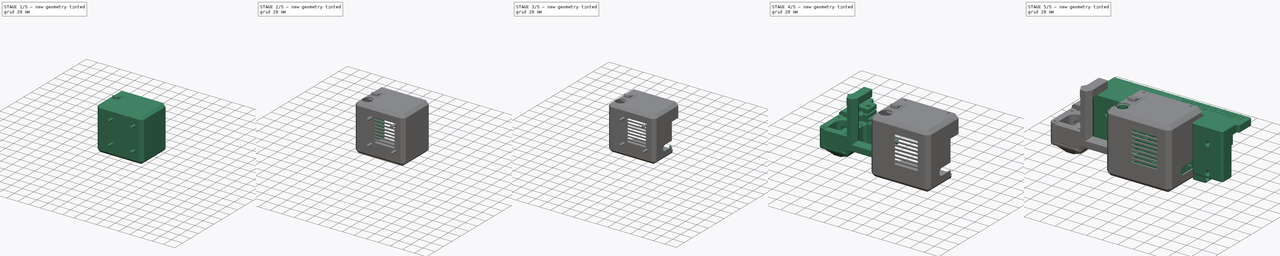
[diagram: build sequence overview — one tinted view per stage of 5, left to right]
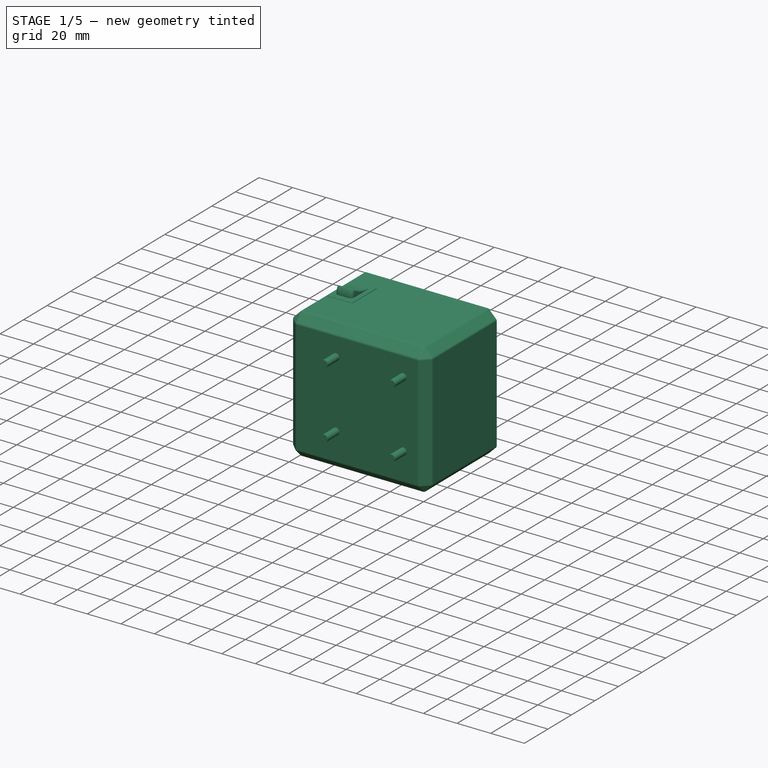
[diagram: stage 1 of 5 — iso view after this stage's code; geometry added in this stage tinted green]
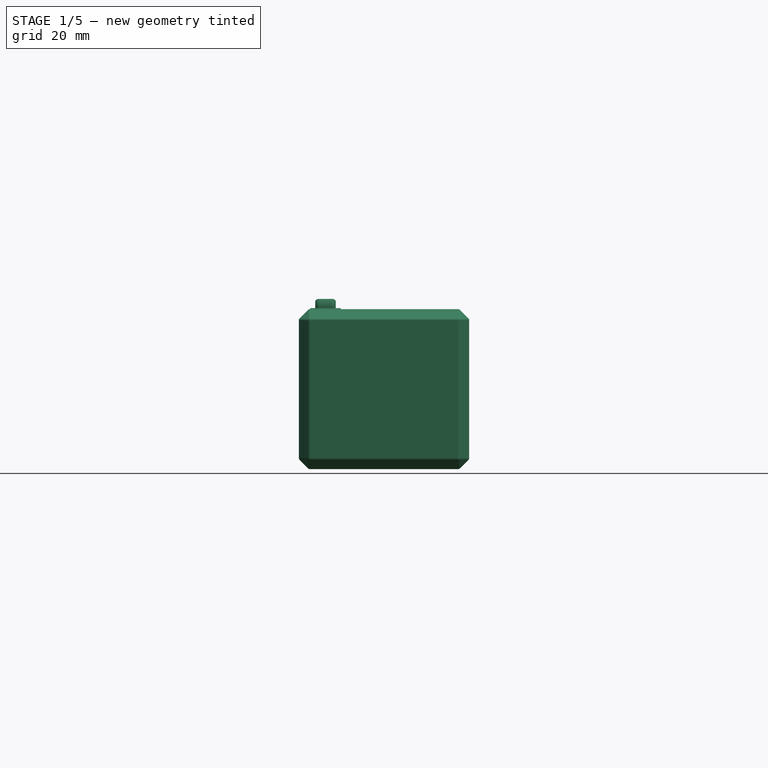
[diagram: stage 1 of 5 — front view after this stage's code; geometry added in this stage tinted green]
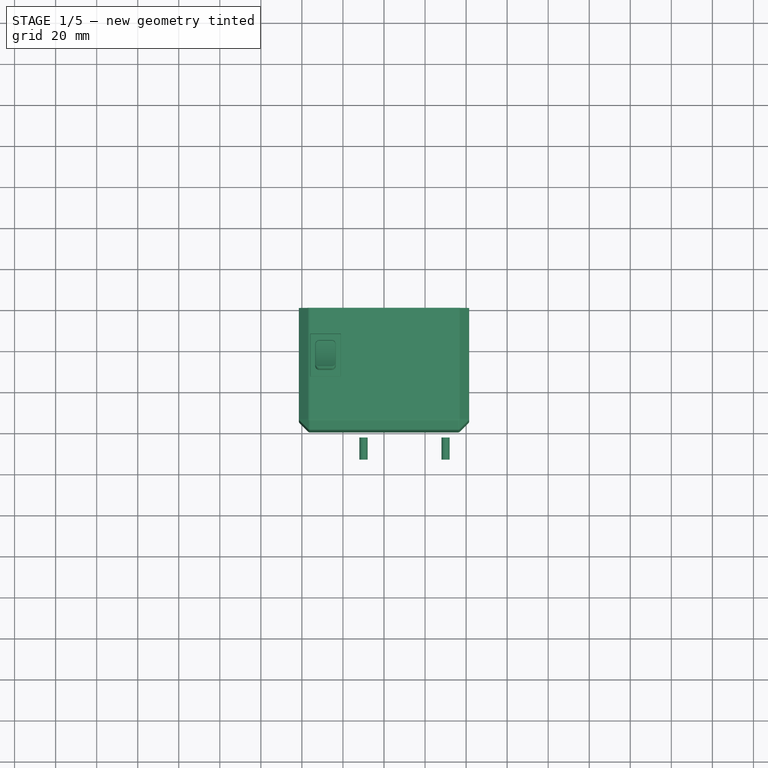
[diagram: stage 1 of 5 — top view after this stage's code; geometry added in this stage tinted green]
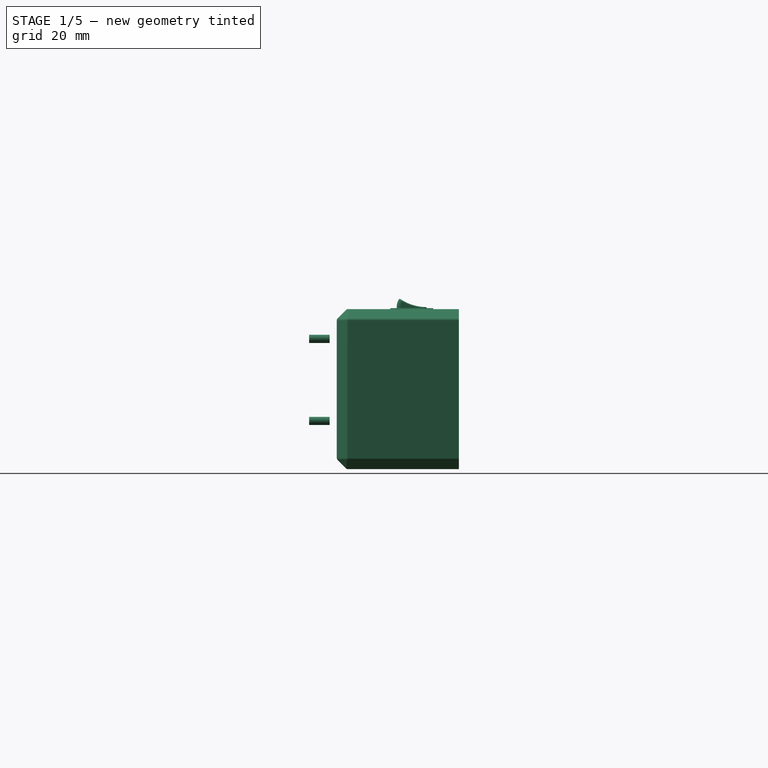
[diagram: stage 1 of 5 — right view after this stage's code; geometry added in this stage tinted green]
FCSTD DOCUMENT  (FreeCAD 0.16RUnknown)
Label: ElecLid
License: All rights reserved
LicenseURL: http://en.wikipedia.org/wiki/All_rights_reserved
objects: Part::FeaturePython×16, Part::Cut×12, Sketcher::SketchObject×7, PartDesign::Pad×7, App::DocumentObjectGroup×3, Part::Chamfer×1, Part::Thickness×1, Part::Feature×1, Spreadsheet::Sheet×1, Part::Part2DObjectPython×1, Part::Extrusion×1, Part::Box×1, PartDesign::Draft×1, Part::Mirroring×1
note: 57 computed .brp shape members not serialized (recipe doc carries the construction recipe); baked Part::Feature solids carry a one-line shape summary decoded from their .brp

FEATURE [Sketcher::SketchObject] Sketch  label="Base"
  Placement = pos=(0,0,0) rot=(1,0,0;1.5708rad)
  sketch-geometry (4):
    g0: LineSegment StartX=0 StartY=75 StartZ=0 EndX=80 EndY=75 EndZ=0
    g1: LineSegment StartX=80 StartY=75 StartZ=0 EndX=80 EndY=0 EndZ=0
    g2: LineSegment StartX=80 StartY=0 StartZ=0 EndX=0 EndY=0 EndZ=0
    g3: LineSegment StartX=0 StartY=0 StartZ=0 EndX=0 EndY=75 EndZ=0
  constraints (11):
    c: Coincident(g0,g1)
    c: Coincident(g1,g2)
    c: Coincident(g2,g3)
    c: Coincident(g3,g0)
    c: Horizontal(g0)
    c: Horizontal(g2)
    c: Vertical(g1)
    c: Vertical(g3)
    c: DistanceX(g0,g0) = 80
    c: DistanceY(g1,g1) = 75
    c: Coincident(g2,g-1)
FEATURE [PartDesign::Pad] Pad  label="Base001"
  Length = 58
  Length2 = 100
  Placement = pos=(0,0,0) rot=(1,0,0;1.5708rad)
  Sketch = -> Sketch
  Type = 0
FEATURE [Part::Chamfer] Chamfer  label="NiceChamfer"
  Base = -> Pad
  Edges = 8 edges r=4: [Edge1,Edge2,Edge4,Edge5,Edge7,Edge8,Edge10,Edge12]
FEATURE [Sketcher::SketchObject] Sketch001  label="Slot"
  Placement = pos=(0,0,0) rot=(1,0,0;1.5708rad)
  sketch-geometry (4):
    g0: ArcOfCircle CenterX=35 CenterY=60 CenterZ=0 NormalX=0 NormalY=0 NormalZ=1 Radius=1.5 StartAngle=1.5708 EndAngle=4.71239
    g1: ArcOfCircle CenterX=65 CenterY=60 CenterZ=0 NormalX=0 NormalY=0 NormalZ=1 Radius=1.5 StartAngle=4.71239 EndAngle=7.85398
    g2: LineSegment StartX=35 StartY=58.5 StartZ=0 EndX=65 EndY=58.5 EndZ=0
    g3: LineSegment StartX=35 StartY=61.5 StartZ=0 EndX=65 EndY=61.5 EndZ=0
  constraints (10):
    c: Tangent(g0,g3) = 1.5708
    c: Tangent(g0,g2) = -1.5708
    c: Tangent(g2,g1) = -1.5708
    c: Tangent(g3,g1) = 1.5708
    c: Horizontal(g2)
    c: Equal(g0,g1)
    c: Radius(g1) = 1.5
    c: DistanceX(g0,g1) = 30
    c: DistanceX(g0) = 35
    c: DistanceY(g0) = 60
FEATURE [Part::Thickness] Thickness
  Faces = -> Chamfer [Face2]
  Intersection = false
  Join = 0
  Mode = 0
  SelfIntersection = false
  Value = 1.5
FEATURE [PartDesign::Pad] Pad005  label="SwitchSlot001"
  Length = 50
  Length2 = 100
  Placement = pos=(0,0,61) rot=(0,0,1;0rad)
  Sketch = -> Sketch008
  Type = 0
FEATURE [Part::Cut] Cut008  label="SwitchSlot002"
  Base = -> Thickness
  Tool = -> Pad005
FEATURE [Sketcher::SketchObject] Sketch010  label="FanBolts"
  sketch-geometry (8):
    g0: LineSegment [constr] StartX=-20 StartY=20 StartZ=0 EndX=20 EndY=20 EndZ=0
    g1: LineSegment [constr] StartX=20 StartY=20 StartZ=0 EndX=20 EndY=-20 EndZ=0
    g2: LineSegment [constr] StartX=20 StartY=-20 StartZ=0 EndX=-20 EndY=-20 EndZ=0
    g3: LineSegment [constr] StartX=-20 StartY=-20 StartZ=0 EndX=-20 EndY=20 EndZ=0
    g4: Circle CenterX=20 CenterY=20 CenterZ=0 NormalX=0 NormalY=0 NormalZ=1 Radius=2
    g5: Circle CenterX=-20 CenterY=20 CenterZ=0 NormalX=0 NormalY=0 NormalZ=1 Radius=2
    g6: Circle CenterX=-20 CenterY=-20 CenterZ=0 NormalX=0 NormalY=0 NormalZ=1 Radius=2
    g7: Circle CenterX=20 CenterY=-20 CenterZ=0 NormalX=0 NormalY=0 NormalZ=1 Radius=2
  constraints (19):
    c: Coincident(g0,g1)
    c: Coincident(g1,g2)
    c: Coincident(g2,g3)
    c: Coincident(g3,g0)
    c: Horizontal(g0)
    c: Horizontal(g2)
    c: Vertical(g1)
    c: Vertical(g3)
    c: Symmetric(g0,g1,g-1)
    c: Equal(g1,g0)
    c: Coincident(g0,g5)
    c: Coincident(g2,g6)
    c: Coincident(g1,g7)
    c: Coincident(g0,g4)
    c: Equal(g5,g4)
    c: Equal(g4,g6)
    c: Equal(g6,g7)
    c: Radius(g5) = 2
    c: DistanceX(g0,g0) = 40
FEATURE [PartDesign::Pad] Pad006  label="FanBolts001"
  Length = 10
  Length2 = 100
  Sketch = -> Sketch010
  Type = 0
FEATURE [App::DocumentObjectGroup] Group002  label="Component_src"
  Group = -> [Pad001,ShapeString,Extrude,Box,Draft,Pad006]
FEATURE [Part::FeaturePython] Clone007013  label="Clone of FanBolts001"  # Draft clone (typed FeaturePython)
  Objects = -> [Pad006]
  Placement = pos=(50,-63,42) rot=(1,0,0;1.5708rad)
  Scale = (1,1,1)
FEATURE [App::DocumentObjectGroup] Group001  label="src"
  Group = -> [Cut007,Cut004,Cut011]
FEATURE [Part::FeaturePython] RLEIL_RL3_4T125_55_01  # a2plus imported part (geometry in sourceFile) (typed FeaturePython)
  Placement = pos=(11.5,-23,75) rot=(0.57735,0.57735,0.57735;2.0944rad)
  fixedPosition = false
  sourceFile = ./Reference/RLEIL RL3-4T125 55.fcstd
  timeLastImport = 1.53296e+09
  updateColors = true
FEATURE [App::DocumentObjectGroup] Group  label="Reference"
  Group = -> [Compound018001,Clone,ElecMain_01,UpperBackCover_01,Clone007012,BackCorner_01,PulleyCover_01,RLEIL_RL3_4T125_55_01]
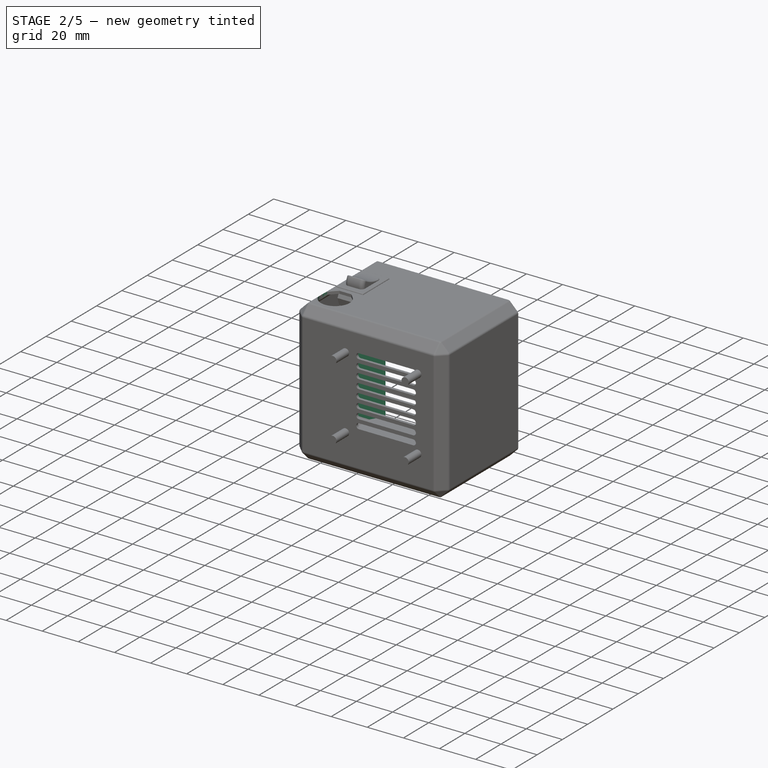
[diagram: stage 2 of 5 — iso view after this stage's code; geometry added in this stage tinted green]
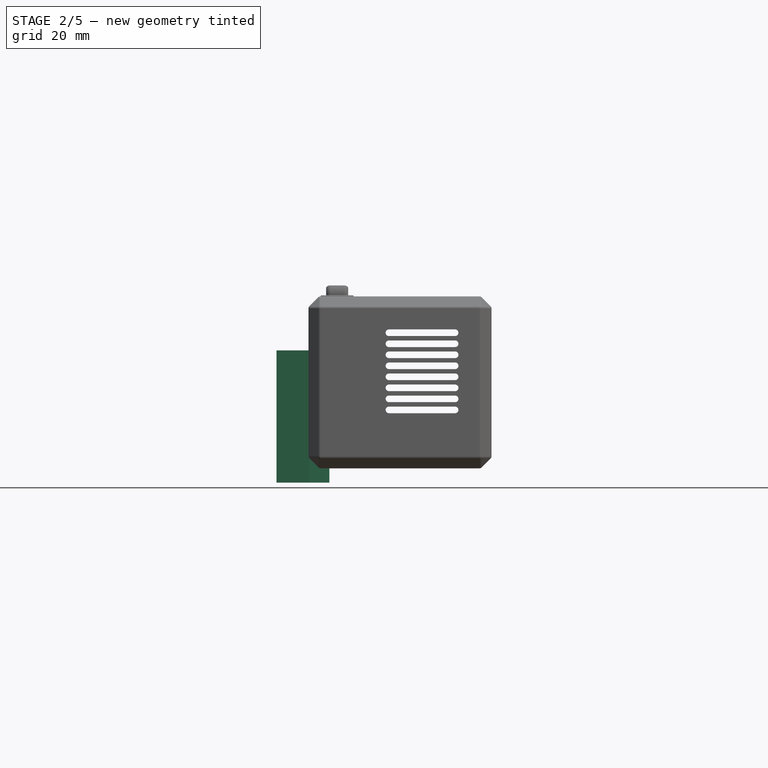
[diagram: stage 2 of 5 — front view after this stage's code; geometry added in this stage tinted green]
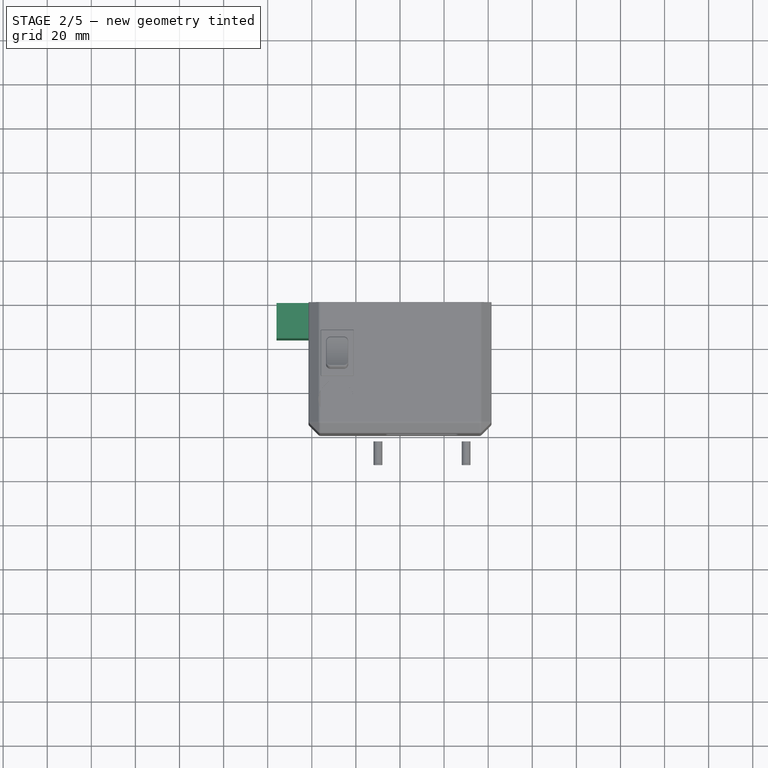
[diagram: stage 2 of 5 — top view after this stage's code; geometry added in this stage tinted green]
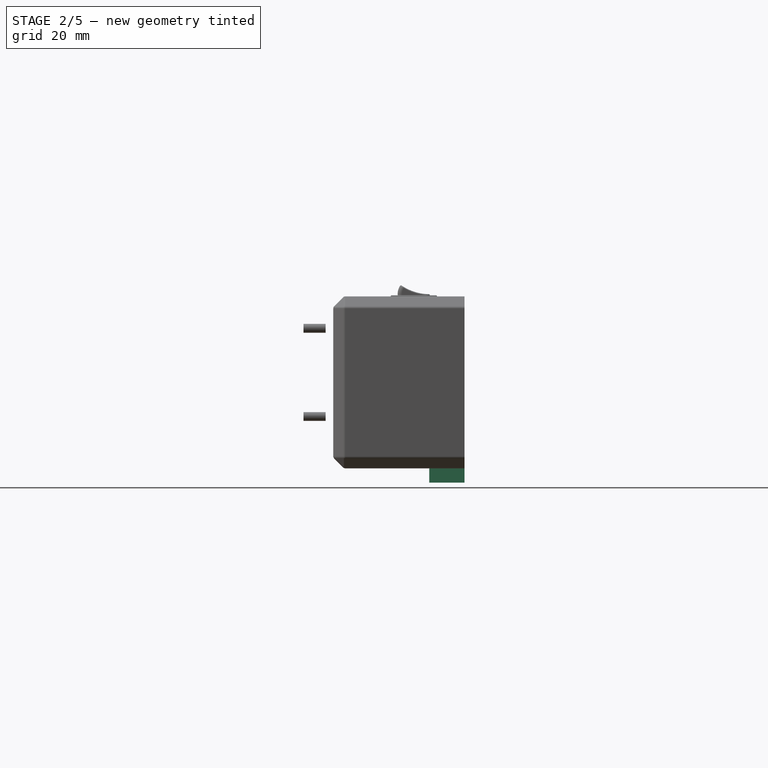
[diagram: stage 2 of 5 — right view after this stage's code; geometry added in this stage tinted green]
FEATURE [Part::Box] Box  label="RailSpace"
  Height = 24
  Length = 60
  Placement = pos=(8,0,46) rot=(0.707107,0,-0.707107;3.14159rad)
  Width = 16
FEATURE [PartDesign::Draft] Draft  label="RailDraft"
  Angle = 30
  Base = -> Box [Face5]
  NeutralPlane = -> Box [Face3]
  Placement = pos=(8,0,46) rot=(0.707107,0,-0.707107;3.14159rad)
FEATURE [Part::FeaturePython] Clone007011  label="Clone of RailDraft"  # Draft clone (typed FeaturePython)
  Objects = -> [Draft]
  Placement = pos=(8,0,52) rot=(0.707107,0,-0.707107;3.14159rad)
  Scale = (1,1,1)
FEATURE [PartDesign::Pad] Pad003  label="Slot001"
  Length = 100
  Length2 = 100
  Placement = pos=(0,0,0) rot=(1,0,0;1.5708rad)
  Sketch = -> Sketch001
  Type = 0
FEATURE [Part::FeaturePython] Array  label="Slots"  # Draft array (typed FeaturePython)
  Angle = 360
  ArrayType = 0
  Axis = (0,0,1)
  Base = -> Pad003
  Center = (0,0,0)
  Fuse = false
  IntervalAxis = (0,0,0)
  IntervalX = (1,0,0)
  IntervalY = (0,1,0)
  IntervalZ = (0,0,-5)
  NumberPolar = 1
  NumberX = 1
  NumberY = 1
  NumberZ = 8
FEATURE [PartDesign::Pad] Pad004  label="InletSpace001"
  Length = 50
  Length2 = 100
  Placement = pos=(0,0,61) rot=(0,0,1;0rad)
  Sketch = -> Sketch007
  Type = 0
FEATURE [Part::Cut] Cut009  label="SlotsCut"
  Base = -> Cut008
  Tool = -> Array
FEATURE [Part::Cut] Cut010  label="InletSpaceCut"
  Base = -> Cut009
  Tool = -> Pad004
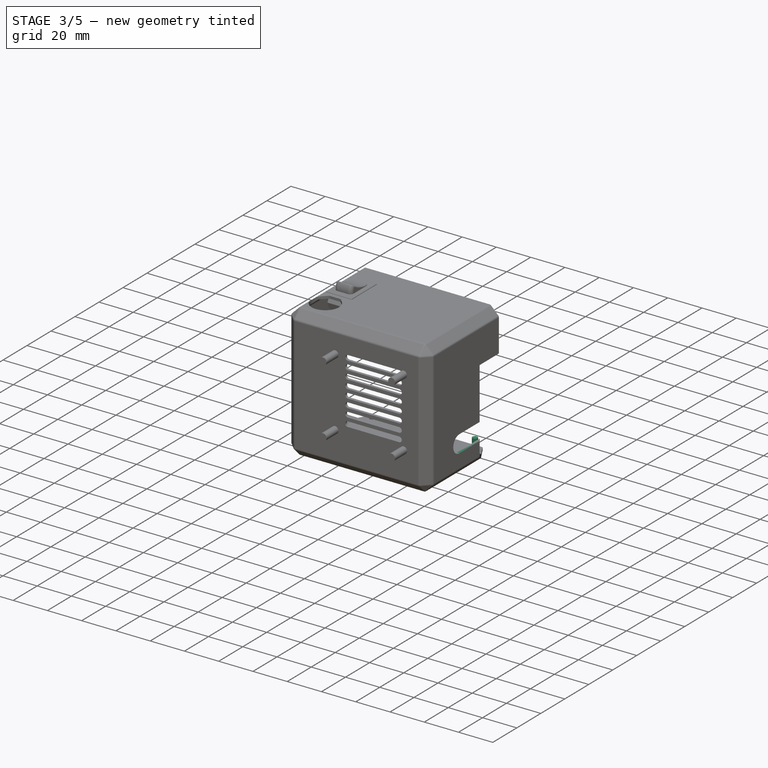
[diagram: stage 3 of 5 — iso view after this stage's code; geometry added in this stage tinted green]
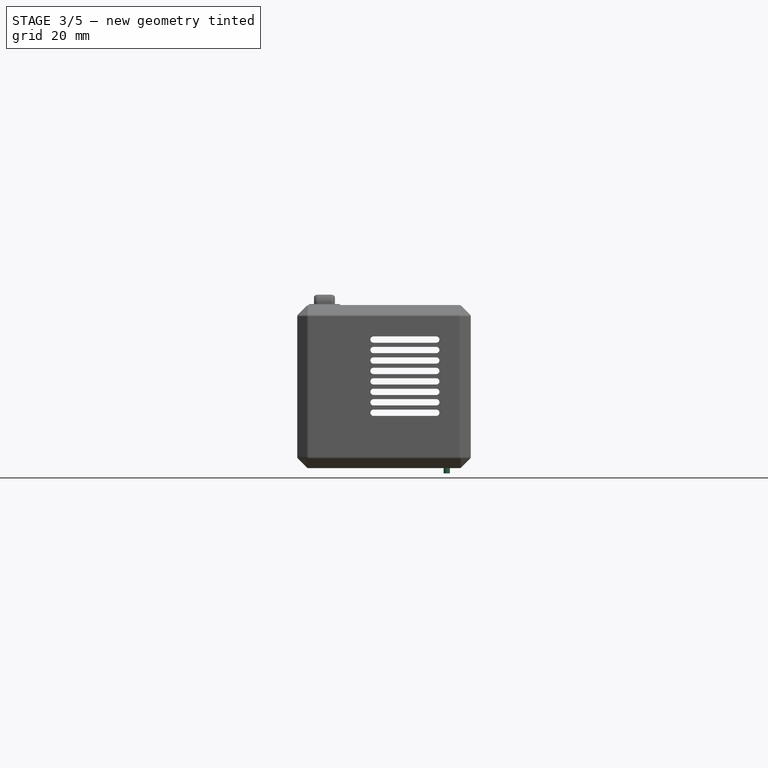
[diagram: stage 3 of 5 — front view after this stage's code; geometry added in this stage tinted green]
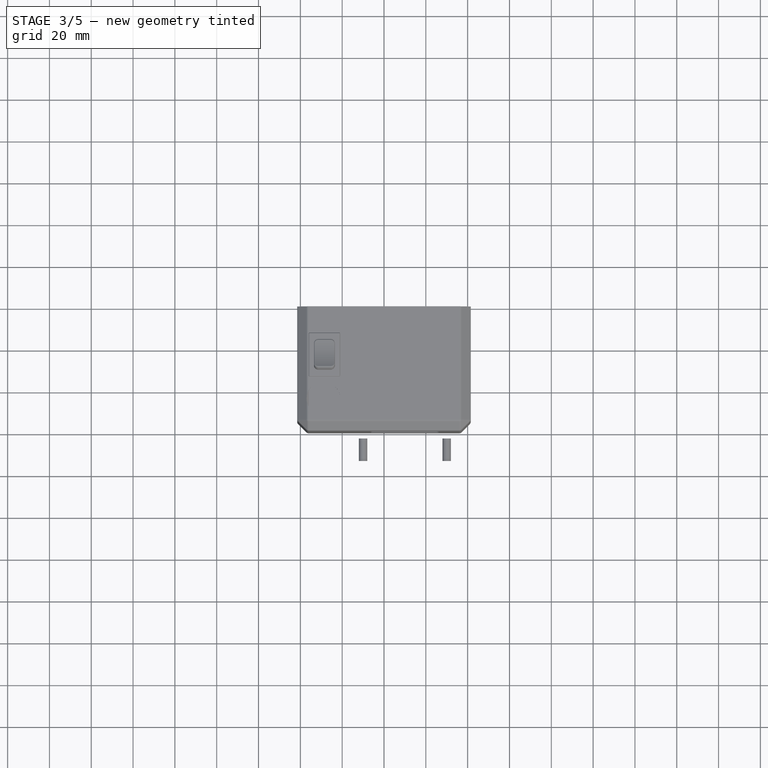
[diagram: stage 3 of 5 — top view after this stage's code; geometry added in this stage tinted green]
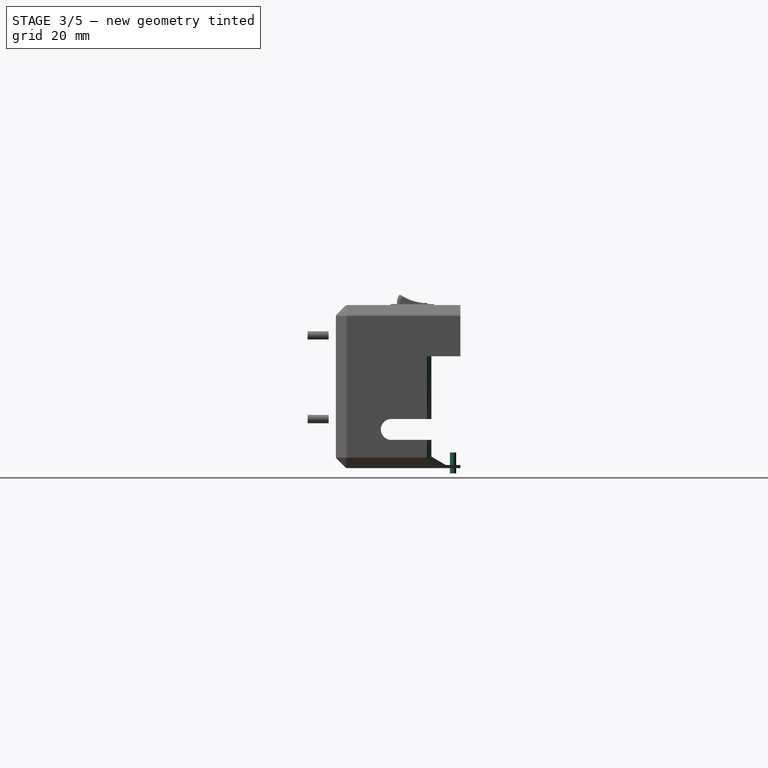
[diagram: stage 3 of 5 — right view after this stage's code; geometry added in this stage tinted green]
FEATURE [Spreadsheet::Sheet] Spreadsheet  label="pars"
  cells = A1=Bolts and Nuts; B1=Value; D1=Components; E1=Value; A2=Thread Tight Tolerance (Radius, ratio); B2(ThrTighRatio)=0.96; D2=Tight Cilinder Tolerances (Radius, mm); E2(CilTight)=0.1; A3=Thread Tight Tolerance (Radius, mm); B3(ThrTightmm)=0.1; D3=Loose Cilinder Tolerances (Radius, mm); E3(CilLoose)=0.1; A5=Nut Slot Width Clearance (mm); B5(NutWidthClearmm)=0.1; A6=Nut Slot Thickess Clearance (mm); B6(NutThickClearmm)=0.1; A13=Particular parameters; B13=Value
FEATURE [Sketcher::SketchObject] Sketch006  label="M3ThrTear"
  sketch-geometry (4):
    g0: ArcOfCircle CenterX=0 CenterY=0 CenterZ=0 NormalX=0 NormalY=0 NormalZ=1 Radius=1.5 StartAngle=2.3562 EndAngle=7.06858
    g1: LineSegment StartX=-1.06067 StartY=1.06065 StartZ=0 EndX=-0.62132 EndY=1.5 EndZ=0
    g2: LineSegment StartX=-0.62132 StartY=1.5 StartZ=0 EndX=0.62132 EndY=1.5 EndZ=0
    g3: LineSegment StartX=0.62132 StartY=1.5 StartZ=0 EndX=1.06066 EndY=1.06066 EndZ=0
  constraints (12):
    c: Coincident(g1,g2)
    c: Coincident(g2,g3)
    c: Coincident(g1,g0)
    c: Coincident(g3,g0)
    c: Perpendicular(g3,g1)
    c: Horizontal(g2)
    c: Tangent(g0,g1)
    c: Tangent(g3,g0)
    c: Angle(g2,g3) = 2.35619
    c: Coincident(g0,g-1)
    c: Tangent(g2,g0)
    c: Radius(g0) = 1.5
FEATURE [PartDesign::Pad] Pad001  label="M3ThrTear001"
  Length = 10
  Length2 = 100
  Sketch = -> Sketch006
  Type = 0
FEATURE [Part::FeaturePython] Clone007004  label="Clone of M3ThrTear001"  # Draft clone (typed FeaturePython)
  Objects = -> [Pad001]
  Placement = pos=(10,-3.5,-4) rot=(0,0,1;0rad)
  Scale = (1,1,1)
FEATURE [Part::FeaturePython] Clone007005  label="Clone of M3ThrTear002"  # Draft clone (typed FeaturePython)
  Objects = -> [Pad001]
  Placement = pos=(70,-3.5,-4) rot=(0,0,1;0rad)
  Scale = (1,1,1)
FEATURE [Sketcher::SketchObject] Sketch009  label="NEMACables"
  Placement = pos=(0,0,0) rot=(0.57735,0.57735,0.57735;2.0944rad)
  sketch-geometry (4):
    g0: ArcOfCircle CenterX=-33 CenterY=17 CenterZ=0 NormalX=0 NormalY=0 NormalZ=1 Radius=5 StartAngle=1.5708 EndAngle=4.71239
    g1: LineSegment StartX=-33 StartY=22 StartZ=0 EndX=0 EndY=22 EndZ=0
    g2: LineSegment StartX=0 StartY=22 StartZ=0 EndX=0 EndY=12 EndZ=0
    g3: LineSegment StartX=0 StartY=12 StartZ=0 EndX=-33 EndY=12 EndZ=0
  constraints (13):
    c: Coincident(g1,g2)
    c: Coincident(g2,g3)
    c: Coincident(g3,g0)
    c: Coincident(g0,g1)
    c: Tangent(g0,g1)
    c: Horizontal(g1)
    c: Horizontal(g3)
    c: Vertical(g2)
    c: PointOnObject(g1,g-2)
    c: Tangent(g0,g3)
    c: Radius(g0) = 5
    c: DistanceX(g0) = -33
    c: DistanceY(g0) = 17
FEATURE [PartDesign::Pad] Pad002  label="NEMACables001"
  Length = 100
  Length2 = 100
  Placement = pos=(0,0,0) rot=(0.57735,0.57735,0.57735;2.0944rad)
  Sketch = -> Sketch009
  Type = 4
FEATURE [Part::Mirroring] Part__Mirroring  label="Clone of RailDraft (Mirror #1)"
  Base = (0,0,0)
  Normal = (1,0,0)
  Placement = pos=(80,0,0) rot=(0,0,1;0rad)
  Source = -> Clone007011
FEATURE [Part::Cut] Cut005  label="NEMACableCut"
  Base = -> Cut010
  Tool = -> Pad002
FEATURE [Part::Cut] Cut006
  Base = -> Cut005
  Tool = -> Clone007011
FEATURE [Part::Cut] Cut007  label="RailCut"
  Base = -> Cut006
  Tool = -> Part__Mirroring
FEATURE [Part::Cut] Cut
  Base = -> Cut007
  Tool = -> Clone007004
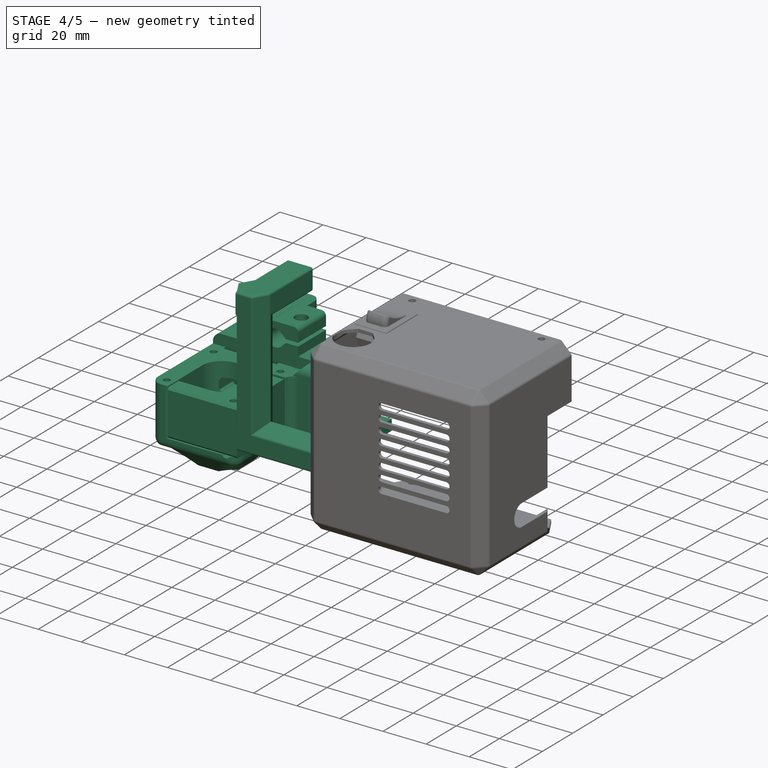
[diagram: stage 4 of 5 — iso view after this stage's code; geometry added in this stage tinted green]
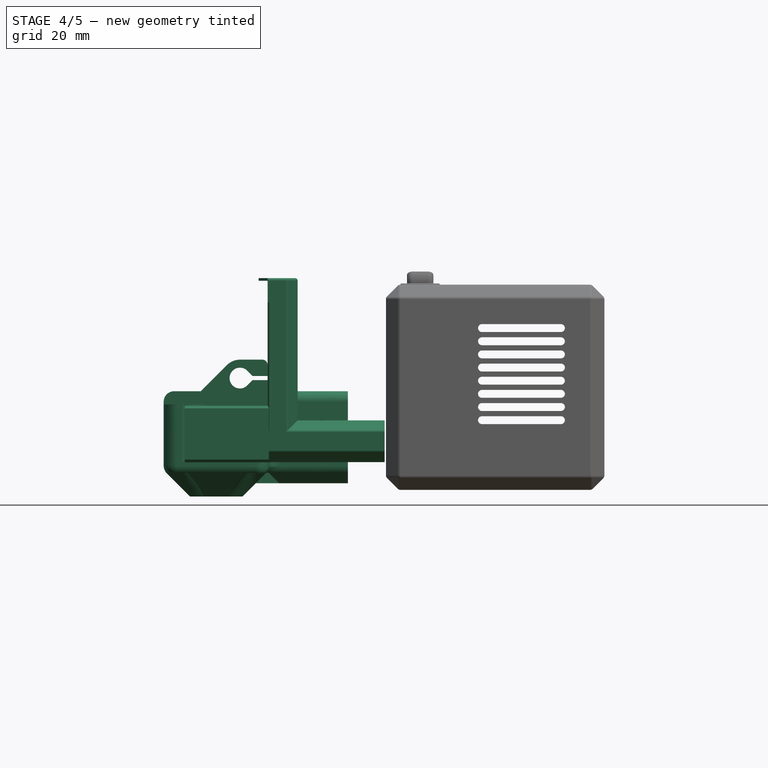
[diagram: stage 4 of 5 — front view after this stage's code; geometry added in this stage tinted green]
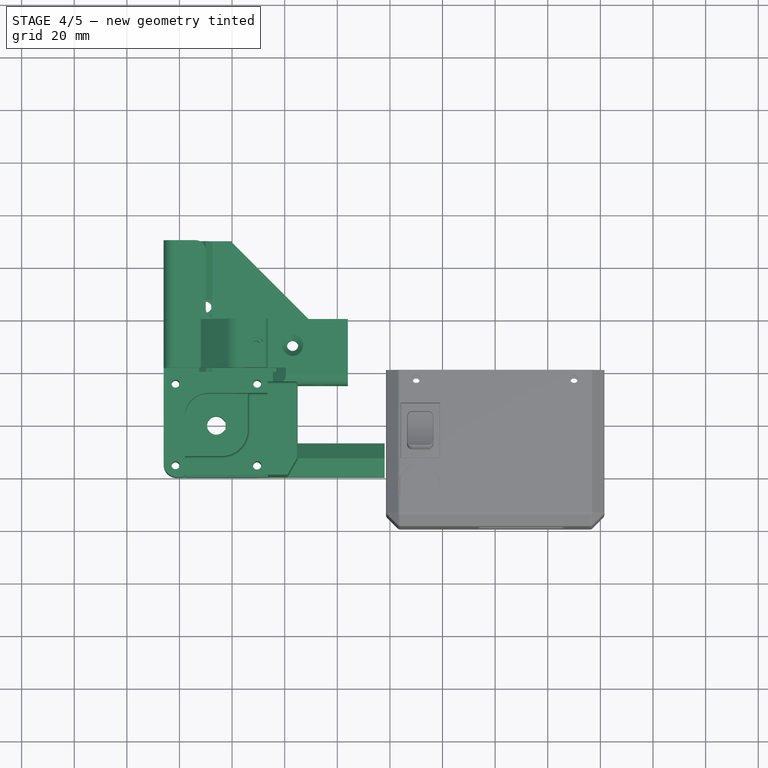
[diagram: stage 4 of 5 — top view after this stage's code; geometry added in this stage tinted green]
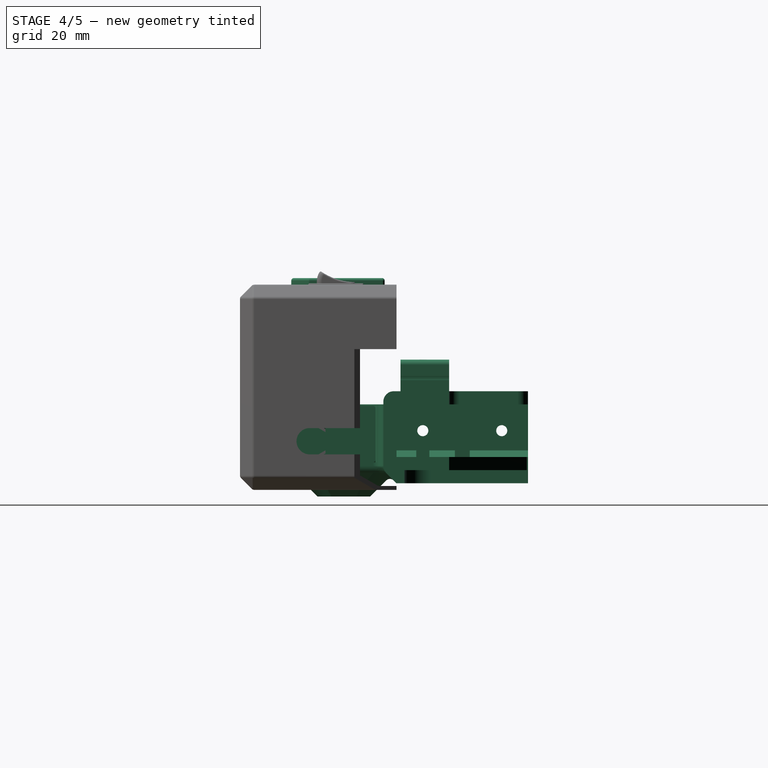
[diagram: stage 4 of 5 — right view after this stage's code; geometry added in this stage tinted green]
FEATURE [Part::FeaturePython] Clone007006  label="Clone of M3ThrTear003"  # Draft clone (typed FeaturePython)
  Objects = -> [Pad001]
  Placement = pos=(10,-3.5,70) rot=(0,0,1;0rad)
  Scale = (1,1,1)
FEATURE [Part::FeaturePython] Clone007007  label="Clone of M3ThrTear004"  # Draft clone (typed FeaturePython)
  Objects = -> [Pad001]
  Placement = pos=(70,-3.5,68) rot=(0,0,1;0rad)
  Scale = (1,1,1)
FEATURE [Part::Cut] Cut001
  Base = -> Cut
  Tool = -> Clone007005
FEATURE [Part::Cut] Cut002
  Base = -> Cut001
  Tool = -> Clone007006
FEATURE [Part::Cut] Cut003  label="FixBoltCuts"
  Base = -> Cut002
  Tool = -> Clone007007
FEATURE [Part::FeaturePython] BackCorner_01  label="BackCorner"  # a2plus imported part (geometry in sourceFile) (typed FeaturePython)
  Placement = pos=(-66,-20,31) rot=(0,0,1;3.14159rad)
  fixedPosition = false
  sourceFile = ./../MainFrame/BackCorner.fcstd
  timeLastImport = 1.52292e+09
  updateColors = true
FEATURE [Part::FeaturePython] PulleyCover_01  label="PulleyCover"  # a2plus imported part (geometry in sourceFile) (typed FeaturePython)
  Placement = pos=(-66,-20,31) rot=(0,0,1;3.14159rad)
  fixedPosition = false
  sourceFile = ./../MainFrame/PulleyCover.fcstd
  timeLastImport = 1.53296e+09
  updateColors = true
FEATURE [Part::Cut] Cut011  label="FanCut"
  Base = -> Cut003
  Tool = -> Clone007013
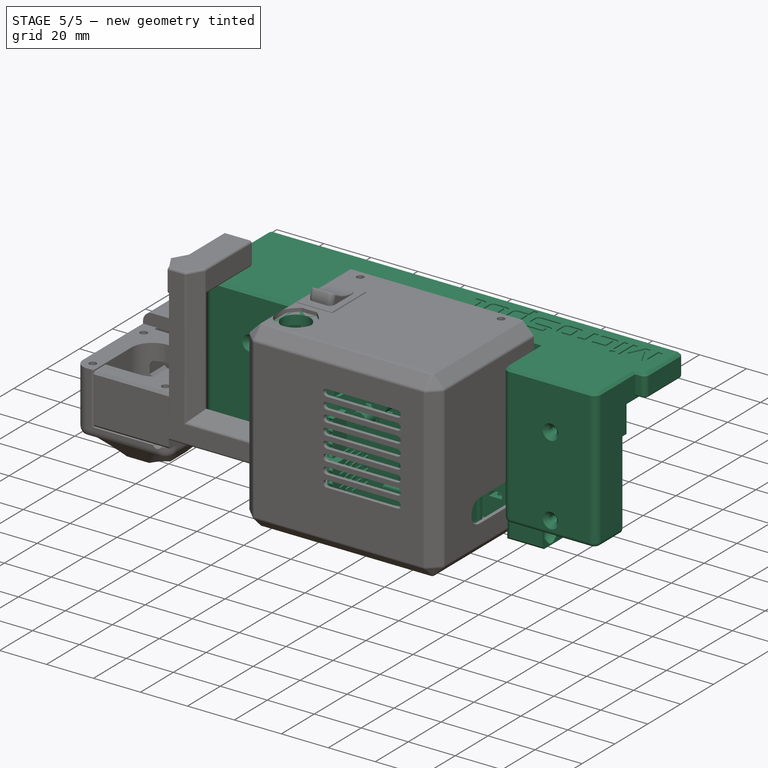
[diagram: stage 5 of 5 — iso view after this stage's code; geometry added in this stage tinted green]
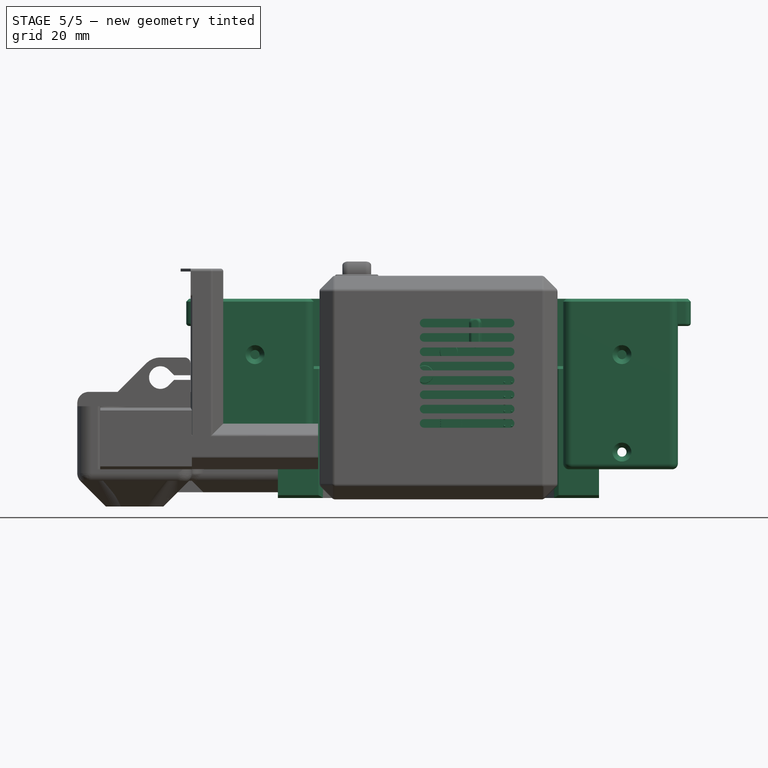
[diagram: stage 5 of 5 — front view after this stage's code; geometry added in this stage tinted green]
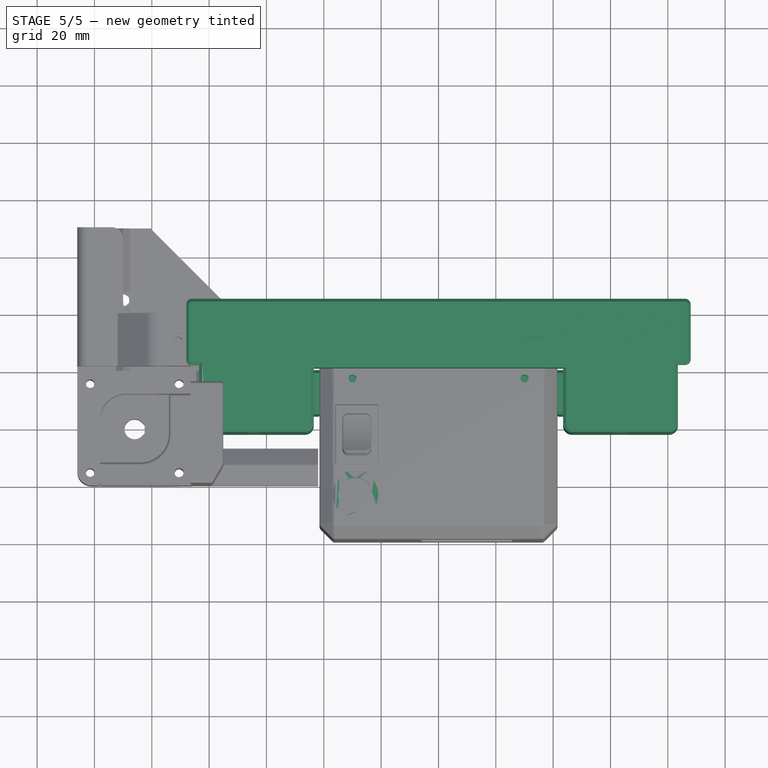
[diagram: stage 5 of 5 — top view after this stage's code; geometry added in this stage tinted green]
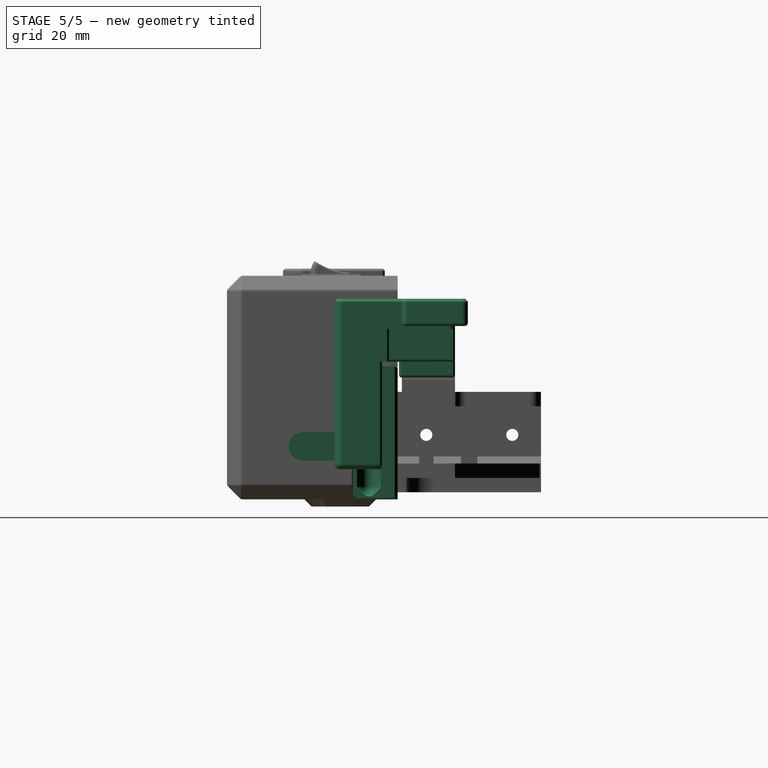
[diagram: stage 5 of 5 — right view after this stage's code; geometry added in this stage tinted green]
FEATURE [Part::Feature] Compound018001  label="freaduino-uno"
  Placement = pos=(21,-11,72) rot=(0.57735,0.57735,-0.57735;2.0944rad)
  shape: bbox 54.65 x 15.28 x 70.58 mm, 4196 faces, 219 solids (baked)
FEATURE [Part::FeaturePython] Clone  label="Clone of freaduino-uno"  # Draft clone (typed FeaturePython)
  Objects = -> [Compound018001]
  Placement = pos=(21,-21,72) rot=(0.57735,0.57735,-0.57735;2.0944rad)
  Scale = (1,1,1)
FEATURE [Part::Part2DObjectPython] ShapeString  label="Sign"  # Draft 2D object (typed FeaturePython)
  FontFile = ./../../Fonts/Xolonium-Regular.otf
  Placement = pos=(11,-59.5,10) rot=(1,0,0;1.5708rad)
  Size = 4
  String = MicroSpot
  Tracking = 0
  expr: Placement.Base.y = -Base001.Length - 1.5mm
FEATURE [Part::Extrusion] Extrude  label="SignCut"
  Base = -> ShapeString
  Dir = (0,0.5,0)
  Solid = true
FEATURE [Part::FeaturePython] Clone007009  label="Clone of SignCut"  # Draft clone (typed FeaturePython)
  Objects = -> [Extrude]
  Scale = (1,1,1)
FEATURE [Sketcher::SketchObject] Sketch007  label="InletSpace"
  Placement = pos=(0,0,61) rot=(0,0,1;0rad)
  sketch-geometry (4):
    g0: ArcOfCircle CenterX=11 CenterY=-44 CenterZ=0 NormalX=0 NormalY=0 NormalZ=1 Radius=8 StartAngle=2.35619 EndAngle=7.06858
    g1: LineSegment StartX=5.34315 StartY=-38.3431 StartZ=0 EndX=7.68629 EndY=-36 EndZ=0
    g2: LineSegment StartX=7.68629 StartY=-36 StartZ=0 EndX=14.3137 EndY=-36 EndZ=0
    g3: LineSegment StartX=14.3137 StartY=-36 StartZ=0 EndX=16.6569 EndY=-38.3431 EndZ=0
  constraints (13):
    c: Coincident(g0,g1)
    c: Coincident(g3,g0)
    c: Perpendicular(g3,g1)
    c: Coincident(g2,g3)
    c: Coincident(g1,g2)
    c: Horizontal(g2)
    c: Angle(g1,g2) = 2.35619
    c: Tangent(g3,g0)
    c: Tangent(g2,g0)
    c: Tangent(g1,g0)
    c: DistanceX(g0) = 11
    c: Radius(g0) = 8
    c: DistanceY(g0) = -44
FEATURE [Sketcher::SketchObject] Sketch008  label="SwitchSlot"
  Placement = pos=(0,0,61) rot=(0,0,1;0rad)
  sketch-geometry (5):
    g0: LineSegment StartX=4.1 StartY=-12.5 StartZ=0 EndX=19.1 EndY=-12.5 EndZ=0
    g1: LineSegment StartX=19.1 StartY=-12.5 StartZ=0 EndX=19.1 EndY=-33.5 EndZ=0
    g2: LineSegment StartX=19.1 StartY=-33.5 StartZ=0 EndX=4.1 EndY=-33.5 EndZ=0
    g3: LineSegment StartX=4.1 StartY=-33.5 StartZ=0 EndX=4.1 EndY=-12.5 EndZ=0
    g4: GeomPoint [constr] X=11.6 Y=-23 Z=0
  constraints (13):
    c: Coincident(g0,g1)
    c: Coincident(g1,g2)
    c: Coincident(g2,g3)
    c: Coincident(g3,g0)
    c: Horizontal(g0)
    c: Horizontal(g2)
    c: Vertical(g1)
    c: Vertical(g3)
    c: Symmetric(g0,g1,g4)
    c: DistanceX(g0,g0) = 15
    c: DistanceY(g1,g1) = 21
    c: DistanceY(g4) = -23
    c: DistanceX(g4) = 11.6
FEATURE [Part::FeaturePython] ElecMain_01  label="ElecMain"  # a2plus imported part (geometry in sourceFile) (typed FeaturePython)
  Placement = pos=(40,0,31) rot=(0,0,1;3.14159rad)
  fixedPosition = true
  sourceFile = ./ElecMain.fcstd
  timeLastImport = 1.53296e+09
  updateColors = true
FEATURE [Part::FeaturePython] UpperBackCover_01  label="UpperBackCover"  # a2plus imported part (geometry in sourceFile) (typed FeaturePython)
  Placement = pos=(40,10,67) rot=(0,0,1;3.14159rad)
  fixedPosition = false
  sourceFile = ./../Axes/ZCarriage/UpperBackCover.fcstd
  timeLastImport = 1.53246e+09
  updateColors = true
FEATURE [Part::FeaturePython] Clone007012  label="Clone of freaduino-uno001"  # Draft clone (typed FeaturePython)
  Objects = -> [Compound018001]
  Placement = pos=(21,-31,72) rot=(0.57735,0.57735,-0.57735;2.0944rad)
  Scale = (1,1,1)
FEATURE [Part::Cut] Cut004  label="SignCut001"
  Base = -> Cut003
  Tool = -> Clone007009
FEATURE [Part::FeaturePython] Clone007010  label="ElecLid"  # Draft clone (typed FeaturePython)
  Objects = -> [Cut004]
  Scale = (1,1,1)
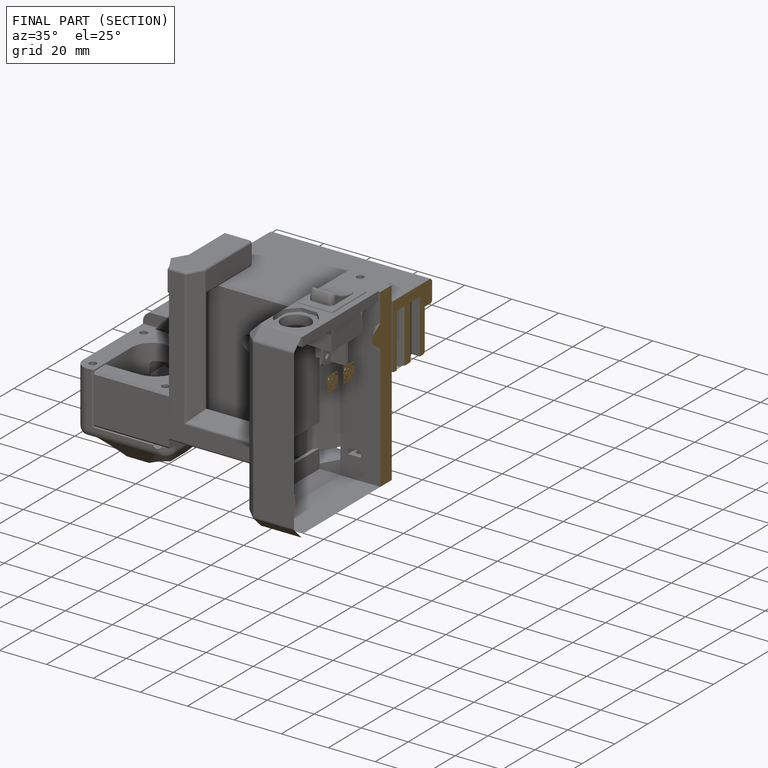
[diagram: finished part — half-section view (interior)]
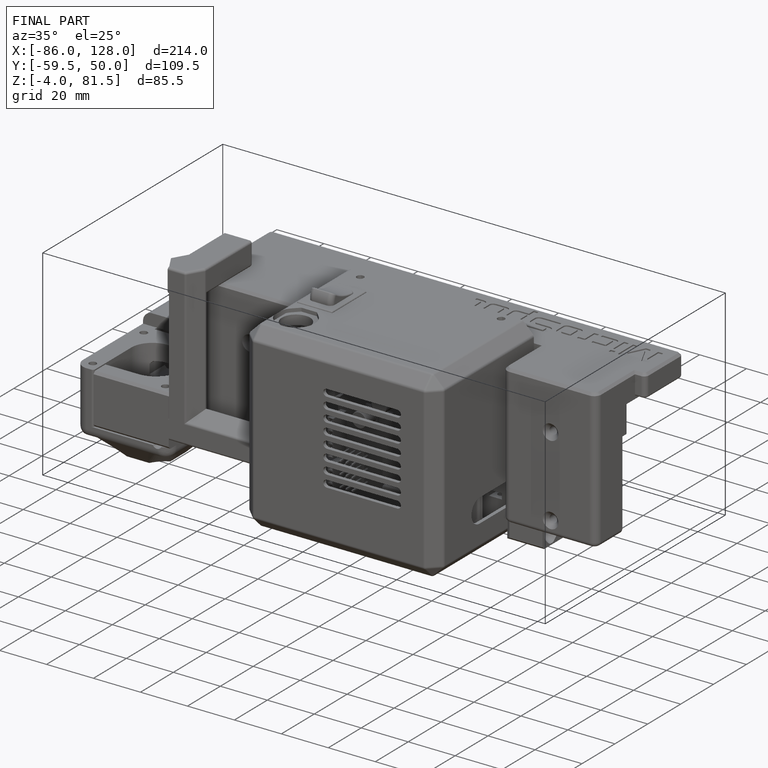
[diagram: finished part — iso view with bounding-box wireframe]
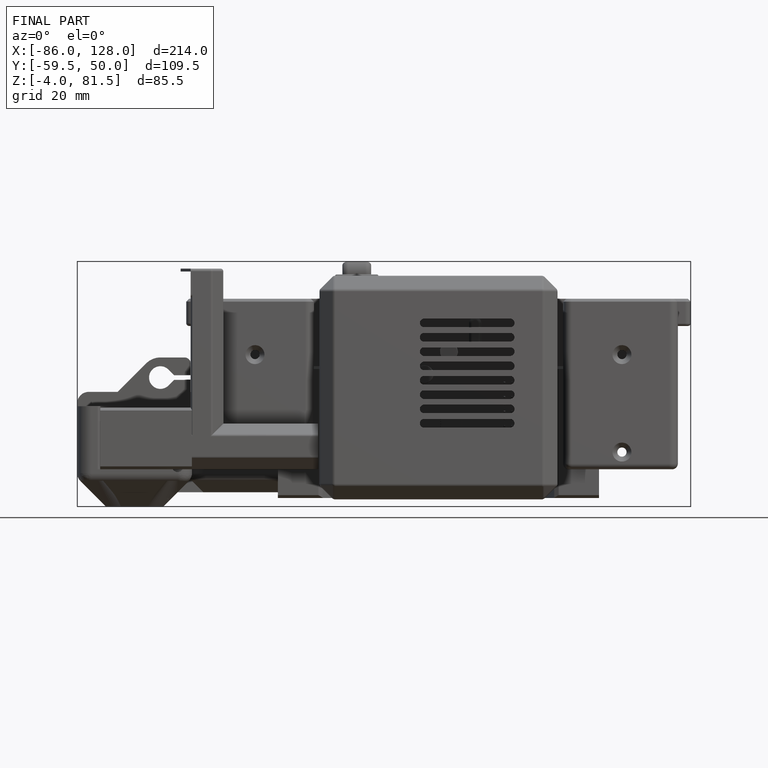
[diagram: finished part — front view with bounding-box wireframe]
